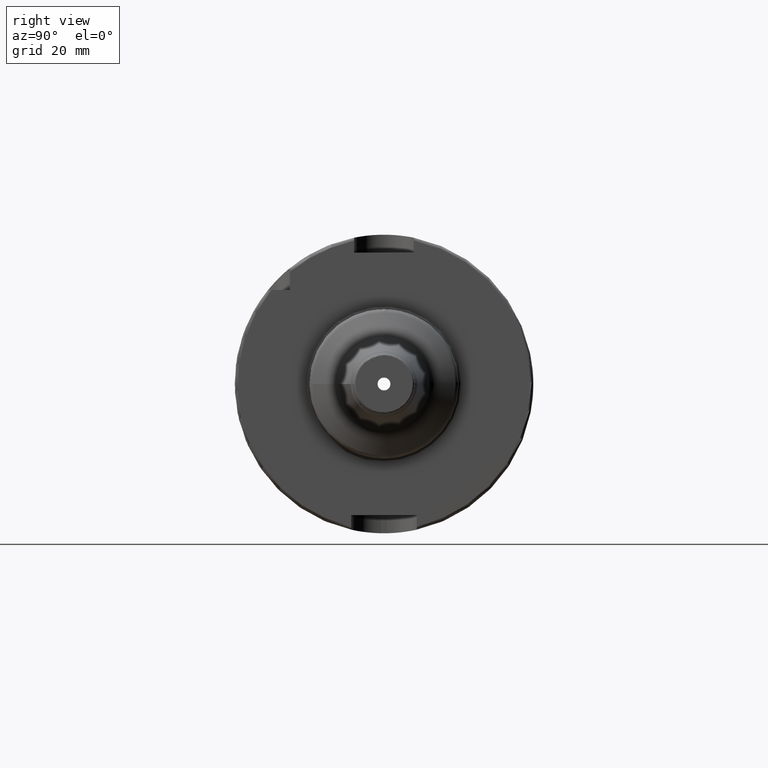
[diagram: clean part render]
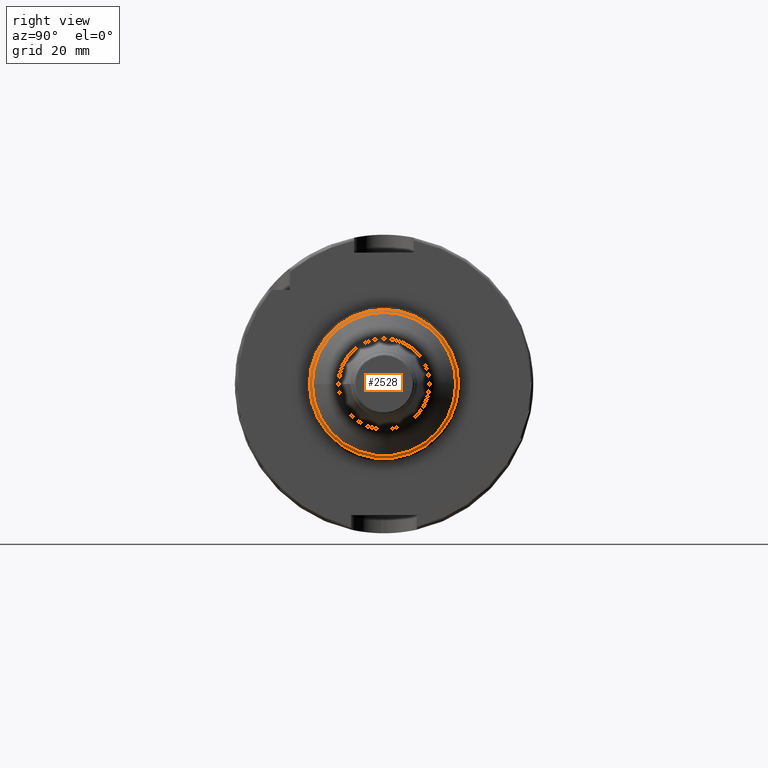
[diagram: same view with one face highlighted and labeled with its STEP entity id]
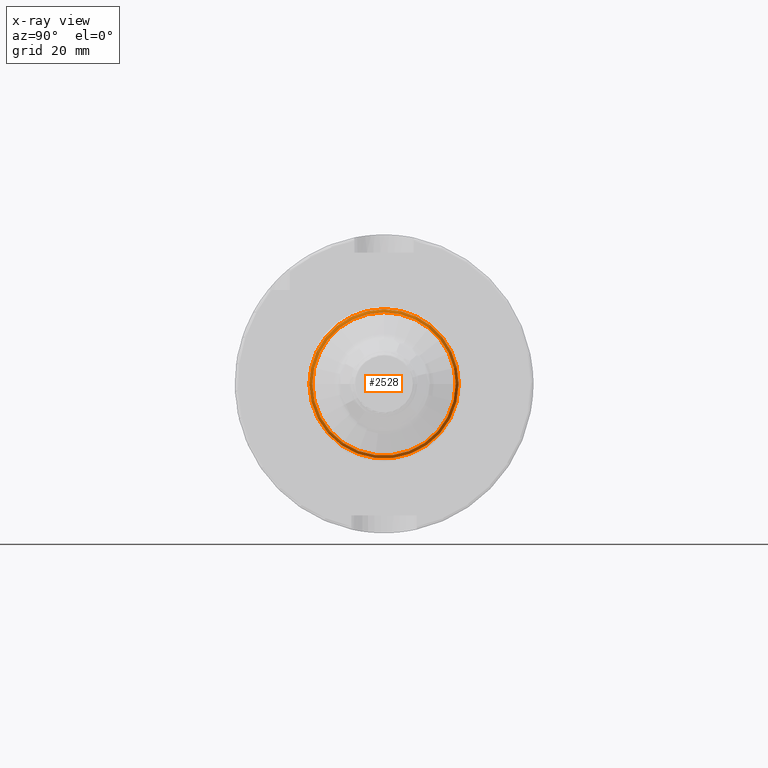
[diagram: x-ray of the same camera — body ghosted, the highlighted face saturated]
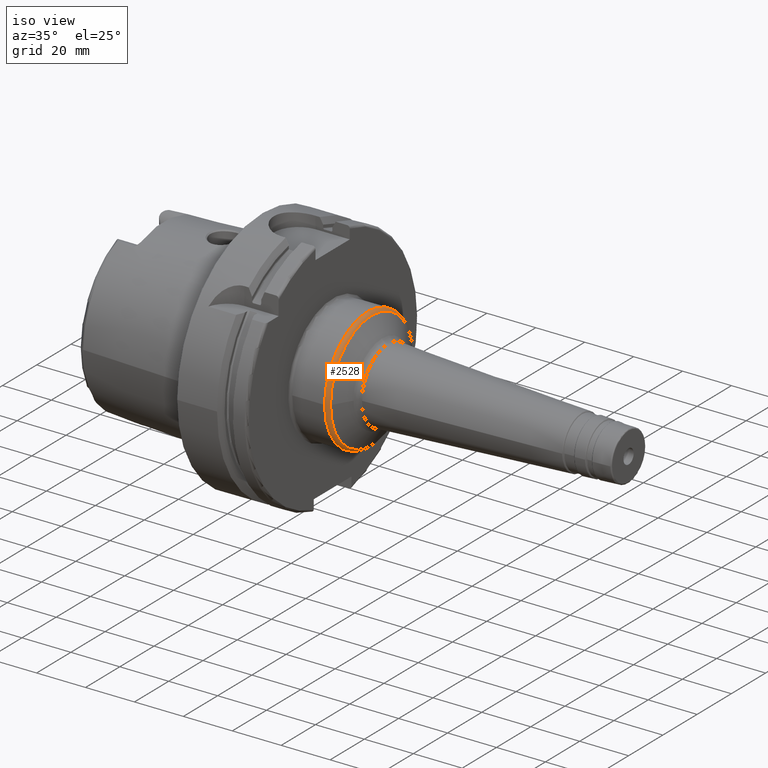
[diagram: same view with one face highlighted and labeled with its STEP entity id]
A machine part, right view. The second image highlights one B-rep face of the part: STEP entity #2528.
The next image is the same camera in x-ray: the body ghosted, the highlighted face saturated — about 0% of this face is hidden behind the body in this view.
A second angle (iso view) of the same face is appended — the face is thin or edge-on in the first view.
In plain terms, the highlighted toroidal blend (fillet) surface has major radius 23 mm and minor (blend) radius 2 mm.
Its self-contained STEP definition (entity closure, byte-faithful):
#451=FACE_OUTER_BOUND('',#587,.T.);
#587=EDGE_LOOP('',(#1814,#1815,#1816,#1817,#1818,#1819,#1820,#1821));
#781=CIRCLE('',#2754,25.);
#782=CIRCLE('',#2755,25.);
#783=CIRCLE('',#2756,25.);
#787=CIRCLE('',#2762,24.);
#788=CIRCLE('',#2763,24.);
#789=CIRCLE('',#2764,2.);
#790=CIRCLE('',#2765,24.);
#997=VERTEX_POINT('',#4041);
#998=VERTEX_POINT('',#4042);
#999=VERTEX_POINT('',#4044);
#1011=VERTEX_POINT('',#4072);
#1012=VERTEX_POINT('',#4073);
#1013=VERTEX_POINT('',#4075);
#1305=EDGE_CURVE('',#997,#998,#781,.T.);
#1306=EDGE_CURVE('',#999,#997,#782,.T.);
#1308=EDGE_CURVE('',#998,#999,#783,.T.);
#1320=EDGE_CURVE('',#1011,#1012,#787,.T.);
#1321=EDGE_CURVE('',#1012,#1013,#788,.T.);
#1322=EDGE_CURVE('',#1013,#998,#789,.T.);
#1323=EDGE_CURVE('',#1013,#1011,#790,.T.);
#1814=ORIENTED_EDGE('',*,*,#1320,.T.);
#1815=ORIENTED_EDGE('',*,*,#1321,.T.);
#1816=ORIENTED_EDGE('',*,*,#1322,.T.);
#1817=ORIENTED_EDGE('',*,*,#1308,.T.);
#1818=ORIENTED_EDGE('',*,*,#1306,.T.);
#1819=ORIENTED_EDGE('',*,*,#1305,.T.);
#1820=ORIENTED_EDGE('',*,*,#1322,.F.);
#1821=ORIENTED_EDGE('',*,*,#1323,.T.);
#2481=TOROIDAL_SURFACE('',#2761,23.,2.);
#2528=ADVANCED_FACE('',(#451),#2481,.T.);
#2754=AXIS2_PLACEMENT_3D('',#4043,#3225,#3226);
#2755=AXIS2_PLACEMENT_3D('',#4045,#3227,#3228);
#2756=AXIS2_PLACEMENT_3D('',#4047,#3230,#3231);
#2761=AXIS2_PLACEMENT_3D('',#4071,#3248,#3249);
#2762=AXIS2_PLACEMENT_3D('',#4074,#3250,#3251);
#2763=AXIS2_PLACEMENT_3D('',#4076,#3252,#3253);
#2764=AXIS2_PLACEMENT_3D('',#4077,#3254,#3255);
#2765=AXIS2_PLACEMENT_3D('',#4078,#3256,#3257);
#3225=DIRECTION('center_axis',(1.,0.,0.));
#3226=DIRECTION('ref_axis',(0.,-1.,1.83697019872103E-16));
#3227=DIRECTION('center_axis',(1.,0.,0.));
#3228=DIRECTION('ref_axis',(0.,-1.,1.83697019872103E-16));
#3230=DIRECTION('center_axis',(1.,0.,0.));
#3231=DIRECTION('ref_axis',(0.,-1.,1.83697019872103E-16));
#3248=DIRECTION('center_axis',(1.,0.,0.));
#3249=DIRECTION('ref_axis',(0.,0.,-1.));
#3250=DIRECTION('center_axis',(-1.,0.,0.));
#3251=DIRECTION('ref_axis',(0.,-1.,3.06161699786838E-17));
#3252=DIRECTION('center_axis',(-1.,0.,0.));
#3253=DIRECTION('ref_axis',(0.,-1.,3.06161699786838E-17));
#3254=DIRECTION('center_axis',(0.,-1.,-1.22464679914735E-16));
#3255=DIRECTION('ref_axis',(0.,-1.22464679914735E-16,1.));
#3256=DIRECTION('center_axis',(-1.,0.,0.));
#3257=DIRECTION('ref_axis',(0.,-1.,3.06161699786838E-17));
#4041=CARTESIAN_POINT('',(43.2108099714458,25.,-1.53080849893419E-15));
#4042=CARTESIAN_POINT('',(43.2108099714458,-3.06161699786838E-15,25.));
#4043=CARTESIAN_POINT('Origin',(43.2108099714458,0.,0.));
#4044=CARTESIAN_POINT('',(43.2108099714458,-25.,-3.06161699786838E-15));
#4045=CARTESIAN_POINT('Origin',(43.2108099714458,0.,0.));
#4047=CARTESIAN_POINT('Origin',(43.2108099714458,0.,0.));
#4071=CARTESIAN_POINT('Origin',(43.2108099714458,0.,0.));
#4072=CARTESIAN_POINT('',(44.9428607790146,24.,-7.34788079488412E-15));
#4073=CARTESIAN_POINT('',(44.9428607790146,-24.,-2.93915231795365E-15));
#4074=CARTESIAN_POINT('Origin',(44.9428607790146,0.,-3.67394039744206E-15));
#4075=CARTESIAN_POINT('',(44.9428607790146,-2.93915231795365E-15,24.));
#4076=CARTESIAN_POINT('Origin',(44.9428607790146,0.,-3.67394039744206E-15));
#4077=CARTESIAN_POINT('Origin',(43.2108099714458,-2.81668763803891E-15,
23.));
#4078=CARTESIAN_POINT('Origin',(44.9428607790146,0.,-3.67394039744206E-15));